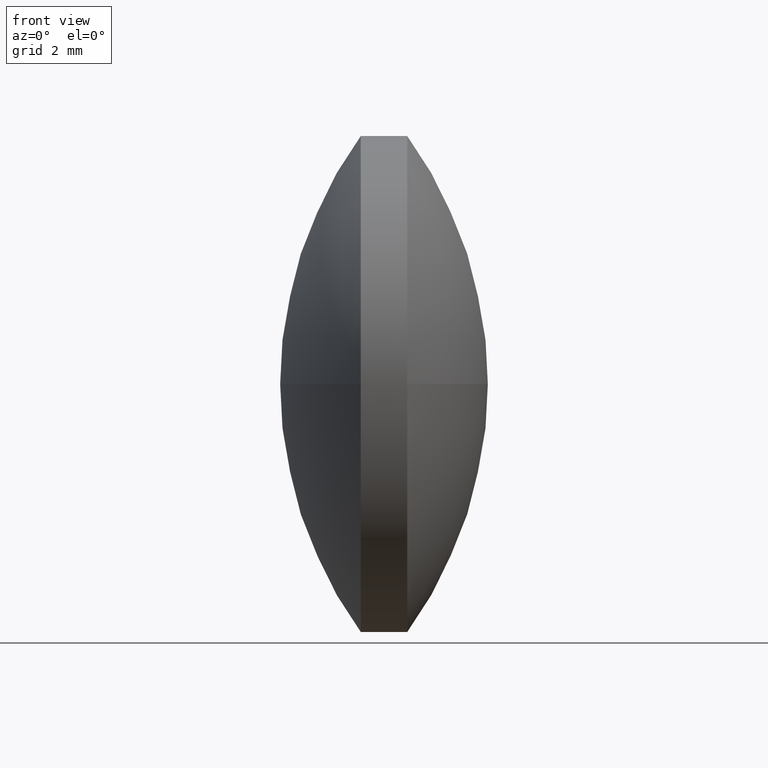
[diagram: clean part render]
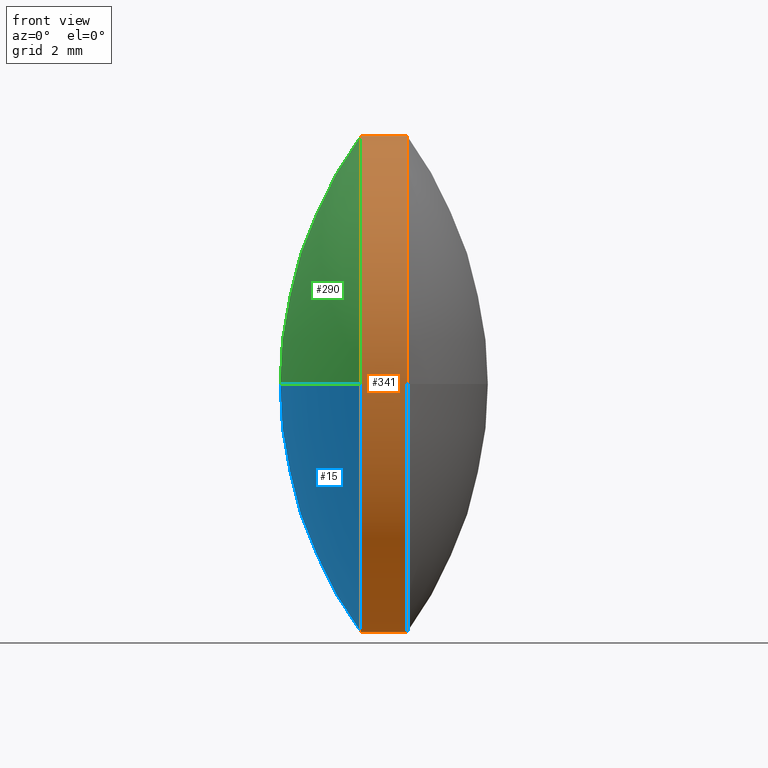
[diagram: same view with three faces highlighted in distinct colors, each labeled with its STEP entity id]
A machine part, front view with three faces highlighted in distinct colors.
Their STEP definitions:

[orange] entity #341 — the highlighted cylindrical surface (partial cylindrical patch) has radius 8 mm, axis along (-1, -0, -0).
#3 = DIRECTION ( 'NONE',  ( 0.0000000000000000000, 0.0000000000000000000, 1.000000000000000000 ) ) ;
#31 = VERTEX_POINT ( 'NONE', #163 ) ;
#44 = LINE ( 'NONE', #238, #138 ) ;
#50 = CARTESIAN_POINT ( 'NONE',  ( 53.71191148910125400, 30.62432316421088900, 0.0000000000000000000 ) ) ;
#51 = CARTESIAN_POINT ( 'NONE',  ( 55.21179720338697900, 30.62432316421088900, 0.0000000000000000000 ) ) ;
#52 = EDGE_CURVE ( 'NONE', #214, #320, #157, .T. ) ;
#58 = CARTESIAN_POINT ( 'NONE',  ( 53.71191148910125400, 30.62432316421088900, 7.999999999999992900 ) ) ;
#59 = DIRECTION ( 'NONE',  ( -1.000000000000000000, -0.0000000000000000000, -0.0000000000000000000 ) ) ;
#75 = CIRCLE ( 'NONE', #128, 7.999999999999992900 ) ;
#78 = DIRECTION ( 'NONE',  ( 0.0000000000000000000, 0.0000000000000000000, 1.000000000000000000 ) ) ;
#82 = ORIENTED_EDGE ( 'NONE', *, *, #140, .T. ) ;
#98 = ORIENTED_EDGE ( 'NONE', *, *, #213, .T. ) ;
#110 = CARTESIAN_POINT ( 'NONE',  ( 55.21179720338697900, 30.62432316421088900, -7.999999999999992900 ) ) ;
#119 = DIRECTION ( 'NONE',  ( -1.000000000000000000, -0.0000000000000000000, -0.0000000000000000000 ) ) ;
#128 = AXIS2_PLACEMENT_3D ( 'NONE', #198, #197, #311 ) ;
#129 = ORIENTED_EDGE ( 'NONE', *, *, #269, .T. ) ;
#138 = VECTOR ( 'NONE', #119, 1000.000000000000000 ) ;
#140 = EDGE_CURVE ( 'NONE', #184, #31, #75, .T. ) ;
#142 = AXIS2_PLACEMENT_3D ( 'NONE', #268, #59, #232 ) ;
#143 = ORIENTED_EDGE ( 'NONE', *, *, #231, .F. ) ;
#145 = CARTESIAN_POINT ( 'NONE',  ( 53.71191148910125400, 30.62432316421088900, -7.999999999999992900 ) ) ;
#155 = VERTEX_POINT ( 'NONE', #332 ) ;
#157 = CIRCLE ( 'NONE', #186, 7.999999999999992900 ) ;
#161 = LINE ( 'NONE', #200, #304 ) ;
#163 = CARTESIAN_POINT ( 'NONE',  ( 55.21179720338697900, 22.62432316421089600, -9.797174393178819700E-016 ) ) ;
#166 = DIRECTION ( 'NONE',  ( -1.000000000000000000, -0.0000000000000000000, -0.0000000000000000000 ) ) ;
#167 = EDGE_CURVE ( 'NONE', #252, #214, #316, .T. ) ;
#184 = VERTEX_POINT ( 'NONE', #110 ) ;
#186 = AXIS2_PLACEMENT_3D ( 'NONE', #201, #166, #3 ) ;
#190 = EDGE_LOOP ( 'NONE', ( #143, #82, #98, #129, #281, #275 ) ) ;
#197 = DIRECTION ( 'NONE',  ( -1.000000000000000000, -0.0000000000000000000, -0.0000000000000000000 ) ) ;
#198 = CARTESIAN_POINT ( 'NONE',  ( 55.21179720338697900, 30.62432316421088900, 0.0000000000000000000 ) ) ;
#200 = CARTESIAN_POINT ( 'NONE',  ( 49.95615833123601100, 30.62432316421088900, -7.999999999999992900 ) ) ;
#201 = CARTESIAN_POINT ( 'NONE',  ( 53.71191148910125400, 30.62432316421088900, 0.0000000000000000000 ) ) ;
#213 = EDGE_CURVE ( 'NONE', #31, #155, #277, .T. ) ;
#214 = VERTEX_POINT ( 'NONE', #307 ) ;
#221 = AXIS2_PLACEMENT_3D ( 'NONE', #50, #251, #328 ) ;
#231 = EDGE_CURVE ( 'NONE', #184, #252, #161, .T. ) ;
#232 = DIRECTION ( 'NONE',  ( 0.0000000000000000000, 0.0000000000000000000, 1.000000000000000000 ) ) ;
#238 = CARTESIAN_POINT ( 'NONE',  ( 49.95615833123601100, 30.62432316421088900, 7.999999999999992900 ) ) ;
#251 = DIRECTION ( 'NONE',  ( -1.000000000000000000, -0.0000000000000000000, -0.0000000000000000000 ) ) ;
#252 = VERTEX_POINT ( 'NONE', #145 ) ;
#255 = DIRECTION ( 'NONE',  ( -1.000000000000000000, -0.0000000000000000000, -0.0000000000000000000 ) ) ;
#268 = CARTESIAN_POINT ( 'NONE',  ( 49.95615833123601100, 30.62432316421088900, 0.0000000000000000000 ) ) ;
#269 = EDGE_CURVE ( 'NONE', #155, #320, #44, .T. ) ;
#273 = AXIS2_PLACEMENT_3D ( 'NONE', #51, #255, #78 ) ;
#275 = ORIENTED_EDGE ( 'NONE', *, *, #167, .F. ) ;
#277 = CIRCLE ( 'NONE', #273, 7.999999999999992900 ) ;
#281 = ORIENTED_EDGE ( 'NONE', *, *, #52, .F. ) ;
#287 = DIRECTION ( 'NONE',  ( -1.000000000000000000, -0.0000000000000000000, -0.0000000000000000000 ) ) ;
#298 = CYLINDRICAL_SURFACE ( 'NONE', #142, 7.999999999999992900 ) ;
#304 = VECTOR ( 'NONE', #287, 1000.000000000000000 ) ;
#307 = CARTESIAN_POINT ( 'NONE',  ( 53.71191148910125400, 22.62432316421089600, -9.797174393178819700E-016 ) ) ;
#311 = DIRECTION ( 'NONE',  ( 0.0000000000000000000, 0.0000000000000000000, 1.000000000000000000 ) ) ;
#316 = CIRCLE ( 'NONE', #221, 7.999999999999992900 ) ;
#320 = VERTEX_POINT ( 'NONE', #58 ) ;
#328 = DIRECTION ( 'NONE',  ( 0.0000000000000000000, 0.0000000000000000000, 1.000000000000000000 ) ) ;
#332 = CARTESIAN_POINT ( 'NONE',  ( 55.21179720338697900, 30.62432316421088900, 7.999999999999992900 ) ) ;
#341 = ADVANCED_FACE ( 'NONE', ( #345 ), #298, .T. ) ;
#345 = FACE_OUTER_BOUND ( 'NONE', #190, .T. ) ;

[blue] entity #15 — the highlighted spherical surface has radius 13.6077 mm.
#4 = DIRECTION ( 'NONE',  ( 0.0000000000000000000, 1.224646799147353200E-016, -1.000000000000000000 ) ) ;
#15 = ADVANCED_FACE ( 'NONE', ( #246 ), #164, .T. ) ;
#21 = ORIENTED_EDGE ( 'NONE', *, *, #167, .T. ) ;
#30 = CARTESIAN_POINT ( 'NONE',  ( 64.71960379679359200, 30.62432316421088900, 0.0000000000000000000 ) ) ;
#41 = VERTEX_POINT ( 'NONE', #222 ) ;
#50 = CARTESIAN_POINT ( 'NONE',  ( 53.71191148910125400, 30.62432316421088900, 0.0000000000000000000 ) ) ;
#84 = AXIS2_PLACEMENT_3D ( 'NONE', #326, #106, #192 ) ;
#88 = CARTESIAN_POINT ( 'NONE',  ( 51.11191148910126000, 30.62432316421088900, 0.0000000000000000000 ) ) ;
#106 = DIRECTION ( 'NONE',  ( -0.0000000000000000000, 0.0000000000000000000, -1.000000000000000000 ) ) ;
#109 = DIRECTION ( 'NONE',  ( 1.000000000000000000, 0.0000000000000000000, 0.0000000000000000000 ) ) ;
#132 = ORIENTED_EDGE ( 'NONE', *, *, #156, .T. ) ;
#144 = DIRECTION ( 'NONE',  ( 0.0000000000000000000, 1.000000000000000000, 1.224646799147353500E-016 ) ) ;
#145 = CARTESIAN_POINT ( 'NONE',  ( 53.71191148910125400, 30.62432316421088900, -7.999999999999992900 ) ) ;
#153 = CIRCLE ( 'NONE', #250, 7.999999999999992900 ) ;
#156 = EDGE_CURVE ( 'NONE', #214, #318, #227, .T. ) ;
#164 = SPHERICAL_SURFACE ( 'NONE', #84, 13.60769230769232900 ) ;
#167 = EDGE_CURVE ( 'NONE', #252, #214, #316, .T. ) ;
#172 = DIRECTION ( 'NONE',  ( 0.0000000000000000000, 0.0000000000000000000, 1.000000000000000000 ) ) ;
#177 = EDGE_CURVE ( 'NONE', #41, #318, #340, .T. ) ;
#192 = DIRECTION ( 'NONE',  ( 0.0000000000000000000, 1.000000000000000000, 0.0000000000000000000 ) ) ;
#204 = AXIS2_PLACEMENT_3D ( 'NONE', #30, #4, #144 ) ;
#214 = VERTEX_POINT ( 'NONE', #307 ) ;
#220 = ORIENTED_EDGE ( 'NONE', *, *, #247, .T. ) ;
#221 = AXIS2_PLACEMENT_3D ( 'NONE', #50, #251, #328 ) ;
#222 = CARTESIAN_POINT ( 'NONE',  ( 53.71191148910125400, 38.62432316421088500, 0.0000000000000000000 ) ) ;
#227 = CIRCLE ( 'NONE', #204, 13.60769230769232700 ) ;
#246 = FACE_OUTER_BOUND ( 'NONE', #278, .T. ) ;
#247 = EDGE_CURVE ( 'NONE', #41, #252, #153, .T. ) ;
#250 = AXIS2_PLACEMENT_3D ( 'NONE', #333, #293, #172 ) ;
#251 = DIRECTION ( 'NONE',  ( -1.000000000000000000, -0.0000000000000000000, -0.0000000000000000000 ) ) ;
#252 = VERTEX_POINT ( 'NONE', #145 ) ;
#253 = CARTESIAN_POINT ( 'NONE',  ( 64.71960379679359200, 30.62432316421088900, 0.0000000000000000000 ) ) ;
#278 = EDGE_LOOP ( 'NONE', ( #220, #21, #132, #337 ) ) ;
#283 = DIRECTION ( 'NONE',  ( -0.0000000000000000000, 0.0000000000000000000, 1.000000000000000000 ) ) ;
#293 = DIRECTION ( 'NONE',  ( -1.000000000000000000, -0.0000000000000000000, -0.0000000000000000000 ) ) ;
#307 = CARTESIAN_POINT ( 'NONE',  ( 53.71191148910125400, 22.62432316421089600, -9.797174393178819700E-016 ) ) ;
#316 = CIRCLE ( 'NONE', #221, 7.999999999999992900 ) ;
#317 = AXIS2_PLACEMENT_3D ( 'NONE', #253, #283, #109 ) ;
#318 = VERTEX_POINT ( 'NONE', #88 ) ;
#326 = CARTESIAN_POINT ( 'NONE',  ( 64.71960379679359200, 30.62432316421088900, 0.0000000000000000000 ) ) ;
#328 = DIRECTION ( 'NONE',  ( 0.0000000000000000000, 0.0000000000000000000, 1.000000000000000000 ) ) ;
#333 = CARTESIAN_POINT ( 'NONE',  ( 53.71191148910125400, 30.62432316421088900, 0.0000000000000000000 ) ) ;
#337 = ORIENTED_EDGE ( 'NONE', *, *, #177, .F. ) ;
#340 = CIRCLE ( 'NONE', #317, 13.60769230769233400 ) ;

[green] entity #290 — the highlighted spherical surface has radius 13.6077 mm.
#3 = DIRECTION ( 'NONE',  ( 0.0000000000000000000, 0.0000000000000000000, 1.000000000000000000 ) ) ;
#4 = DIRECTION ( 'NONE',  ( 0.0000000000000000000, 1.224646799147353200E-016, -1.000000000000000000 ) ) ;
#7 = DIRECTION ( 'NONE',  ( 0.0000000000000000000, 0.0000000000000000000, 1.000000000000000000 ) ) ;
#19 = CIRCLE ( 'NONE', #169, 7.999999999999992900 ) ;
#30 = CARTESIAN_POINT ( 'NONE',  ( 64.71960379679359200, 30.62432316421088900, 0.0000000000000000000 ) ) ;
#41 = VERTEX_POINT ( 'NONE', #222 ) ;
#52 = EDGE_CURVE ( 'NONE', #214, #320, #157, .T. ) ;
#58 = CARTESIAN_POINT ( 'NONE',  ( 53.71191148910125400, 30.62432316421088900, 7.999999999999992900 ) ) ;
#62 = AXIS2_PLACEMENT_3D ( 'NONE', #117, #339, #338 ) ;
#68 = EDGE_LOOP ( 'NONE', ( #125, #299, #323, #225 ) ) ;
#88 = CARTESIAN_POINT ( 'NONE',  ( 51.11191148910126000, 30.62432316421088900, 0.0000000000000000000 ) ) ;
#109 = DIRECTION ( 'NONE',  ( 1.000000000000000000, 0.0000000000000000000, 0.0000000000000000000 ) ) ;
#117 = CARTESIAN_POINT ( 'NONE',  ( 64.71960379679359200, 30.62432316421088900, 0.0000000000000000000 ) ) ;
#123 = CARTESIAN_POINT ( 'NONE',  ( 53.71191148910125400, 30.62432316421088900, 0.0000000000000000000 ) ) ;
#125 = ORIENTED_EDGE ( 'NONE', *, *, #156, .F. ) ;
#144 = DIRECTION ( 'NONE',  ( 0.0000000000000000000, 1.000000000000000000, 1.224646799147353500E-016 ) ) ;
#156 = EDGE_CURVE ( 'NONE', #214, #318, #227, .T. ) ;
#157 = CIRCLE ( 'NONE', #186, 7.999999999999992900 ) ;
#166 = DIRECTION ( 'NONE',  ( -1.000000000000000000, -0.0000000000000000000, -0.0000000000000000000 ) ) ;
#169 = AXIS2_PLACEMENT_3D ( 'NONE', #123, #314, #7 ) ;
#170 = FACE_OUTER_BOUND ( 'NONE', #68, .T. ) ;
#177 = EDGE_CURVE ( 'NONE', #41, #318, #340, .T. ) ;
#186 = AXIS2_PLACEMENT_3D ( 'NONE', #201, #166, #3 ) ;
#201 = CARTESIAN_POINT ( 'NONE',  ( 53.71191148910125400, 30.62432316421088900, 0.0000000000000000000 ) ) ;
#204 = AXIS2_PLACEMENT_3D ( 'NONE', #30, #4, #144 ) ;
#214 = VERTEX_POINT ( 'NONE', #307 ) ;
#222 = CARTESIAN_POINT ( 'NONE',  ( 53.71191148910125400, 38.62432316421088500, 0.0000000000000000000 ) ) ;
#225 = ORIENTED_EDGE ( 'NONE', *, *, #177, .T. ) ;
#227 = CIRCLE ( 'NONE', #204, 13.60769230769232700 ) ;
#229 = EDGE_CURVE ( 'NONE', #320, #41, #19, .T. ) ;
#253 = CARTESIAN_POINT ( 'NONE',  ( 64.71960379679359200, 30.62432316421088900, 0.0000000000000000000 ) ) ;
#280 = SPHERICAL_SURFACE ( 'NONE', #62, 13.60769230769232900 ) ;
#283 = DIRECTION ( 'NONE',  ( -0.0000000000000000000, 0.0000000000000000000, 1.000000000000000000 ) ) ;
#290 = ADVANCED_FACE ( 'NONE', ( #170 ), #280, .T. ) ;
#299 = ORIENTED_EDGE ( 'NONE', *, *, #52, .T. ) ;
#307 = CARTESIAN_POINT ( 'NONE',  ( 53.71191148910125400, 22.62432316421089600, -9.797174393178819700E-016 ) ) ;
#314 = DIRECTION ( 'NONE',  ( -1.000000000000000000, -0.0000000000000000000, -0.0000000000000000000 ) ) ;
#317 = AXIS2_PLACEMENT_3D ( 'NONE', #253, #283, #109 ) ;
#318 = VERTEX_POINT ( 'NONE', #88 ) ;
#320 = VERTEX_POINT ( 'NONE', #58 ) ;
#323 = ORIENTED_EDGE ( 'NONE', *, *, #229, .T. ) ;
#338 = DIRECTION ( 'NONE',  ( 0.0000000000000000000, 1.000000000000000000, 0.0000000000000000000 ) ) ;
#339 = DIRECTION ( 'NONE',  ( -0.0000000000000000000, 0.0000000000000000000, -1.000000000000000000 ) ) ;
#340 = CIRCLE ( 'NONE', #317, 13.60769230769233400 ) ;